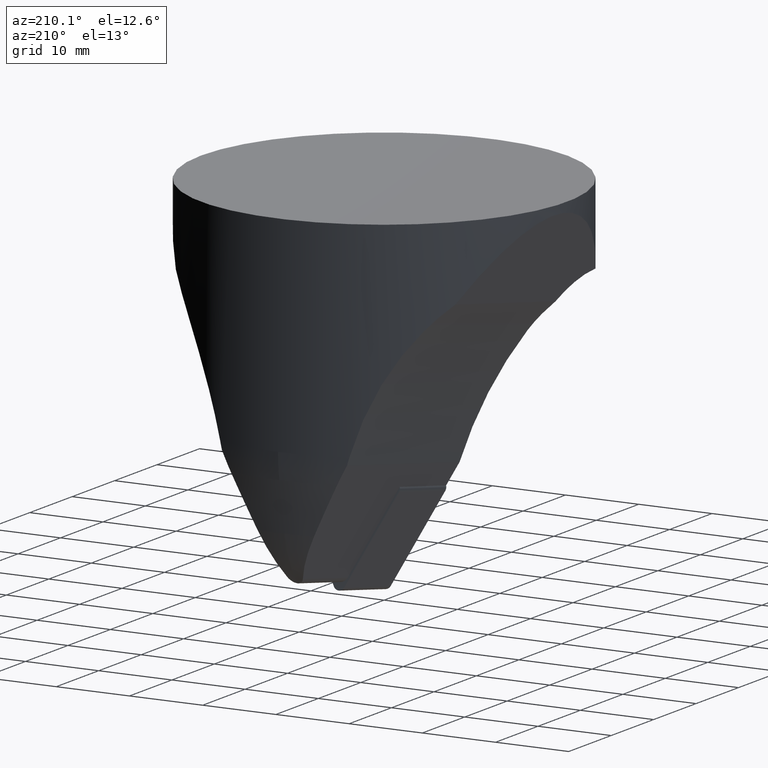
[diagram: clean part render]
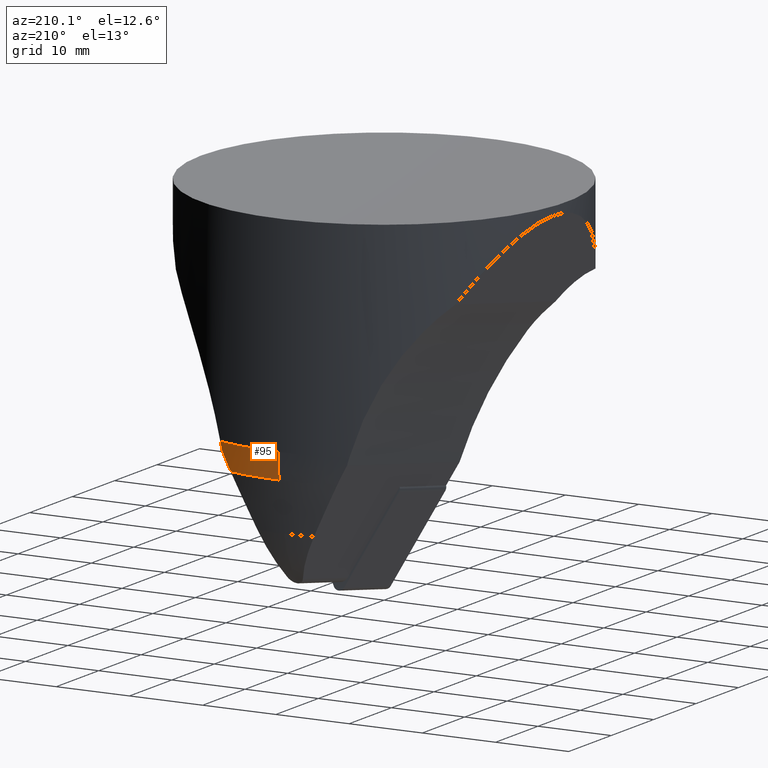
[diagram: same view with one face highlighted and labeled with its STEP entity id]
A machine part, auxiliary view. The second image highlights one B-rep face of the part: STEP entity #95.
In plain terms, the highlighted toroidal blend (fillet) surface has major radius 5 mm and minor (blend) radius 20 mm.
Its self-contained STEP definition (entity closure, byte-faithful):
#95=ADVANCED_FACE('',(#146),#147,.T.);
#146=FACE_OUTER_BOUND('',#205,.T.);
#147=TOROIDAL_SURFACE('',#206,4.99999999998933,19.9999999999995);
#205=EDGE_LOOP('',(#396,#397,#398,#399,#400));
#206=AXIS2_PLACEMENT_3D('',#401,#402,#403);
#396=ORIENTED_EDGE('',*,*,#532,.F.);
#397=ORIENTED_EDGE('',*,*,#522,.T.);
#398=ORIENTED_EDGE('',*,*,#533,.T.);
#399=ORIENTED_EDGE('',*,*,#502,.T.);
#400=ORIENTED_EDGE('',*,*,#534,.T.);
#401=CARTESIAN_POINT('',(1.69101655788168E-012,1.10035314193624E-011,-28.2502267298266));
#402=DIRECTION('',(-1.0758381104024E-011,-7.5409260396901E-011,1.0));
#403=DIRECTION('',(0.983804316987568,-0.179245825269727,-2.93265333888602E-012));
#502=EDGE_CURVE('',#606,#604,#607,.T.);
#522=EDGE_CURVE('',#641,#639,#642,.T.);
#532=EDGE_CURVE('',#641,#659,#660,.T.);
#533=EDGE_CURVE('',#639,#606,#661,.T.);
#534=EDGE_CURVE('',#604,#659,#662,.T.);
#604=VERTEX_POINT('',#770);
#606=VERTEX_POINT('',#772);
#607=CIRCLE('',#773,19.0761648064023);
#639=VERTEX_POINT('',#870);
#641=VERTEX_POINT('',#889);
#642=CIRCLE('',#890,25.0);
#659=VERTEX_POINT('',#939);
#660=CIRCLE('',#940,20.0);
#661=CIRCLE('',#941,15.451015167547);
#662=CIRCLE('',#942,24.696155060248);
#770=CARTESIAN_POINT('',(7.27193804052132,23.6012497951832,-31.7231902827742));
#772=CARTESIAN_POINT('',(8.55146388740701,23.4652854800811,-29.2513003937335));
#773=AXIS2_PLACEMENT_3D('',#1018,#1019,#1020);
#870=CARTESIAN_POINT('',(8.81714083515269,23.3935467061556,-28.2502267294459));
#889=CARTESIAN_POINT('',(-3.79826201926659E-015,25.0,-28.2502267294459));
#890=AXIS2_PLACEMENT_3D('',#1054,#1055,#1056);
#939=CARTESIAN_POINT('',(-3.81686715591179E-015,24.696155060248,-31.7231902827742));
#940=AXIS2_PLACEMENT_3D('',#1073,#1074,#1075);
#941=AXIS2_PLACEMENT_3D('',#1076,#1077,#1078);
#942=AXIS2_PLACEMENT_3D('',#1079,#1080,#1081);
#1018=CARTESIAN_POINT('',(8.84272683936571,4.59204569262159,-32.0110194988042));
#1019=DIRECTION('',(-0.887010833178208,-0.0801818052286826,0.454733614256491));
#1020=DIRECTION('',(-0.0152684229201538,0.989362378601665,0.144668445312679));
#1054=CARTESIAN_POINT('',(-3.55271367880048E-015,-9.99200722162641E-016,-28.2502267294459));
#1055=DIRECTION('',(0.0,0.0,-1.0));
#1056=DIRECTION('',(1.0,0.0,0.0));
#1073=CARTESIAN_POINT('',(-3.24655197901369E-015,5.0,-28.2502267294459));
#1074=DIRECTION('',(-1.0,0.0,0.0));
#1075=DIRECTION('',(0.0,1.0,0.0));
#1076=CARTESIAN_POINT('',(13.6224154341211,8.98718276757723,-31.096256210232));
#1077=DIRECTION('',(-0.912281394395515,-0.347208175959423,0.2172306147547));
#1078=DIRECTION('',(-0.311000574839984,0.932389476183886,0.184196924922046));
#1079=CARTESIAN_POINT('',(1.75859327100625E-013,-9.99200722162641E-016,-31.7231902827742));
#1080=DIRECTION('',(0.0,0.0,1.0));
#1081=DIRECTION('',(1.0,0.0,0.0));